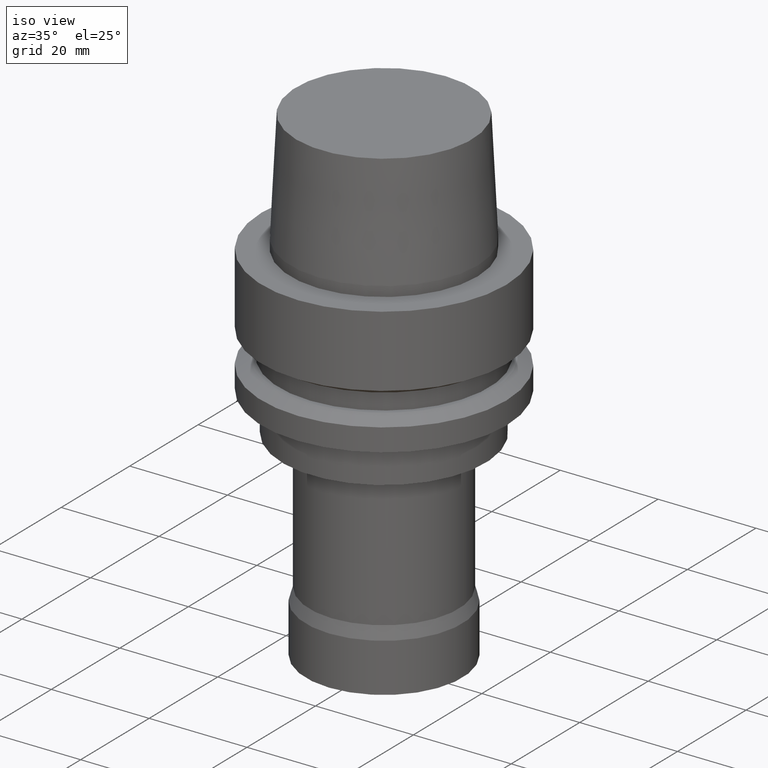
[diagram: clean part render]
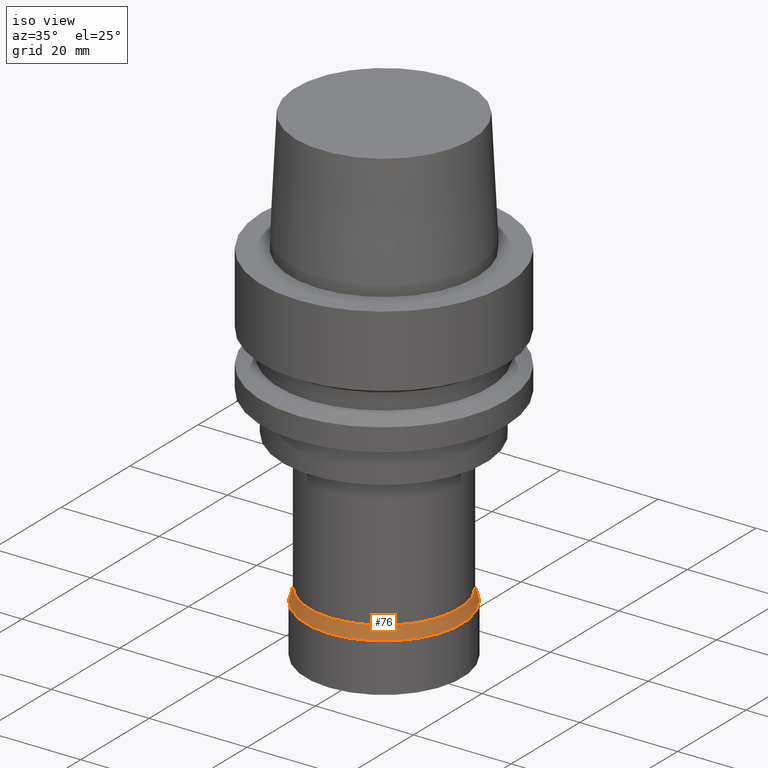
[diagram: same view with one face highlighted and labeled with its STEP entity id]
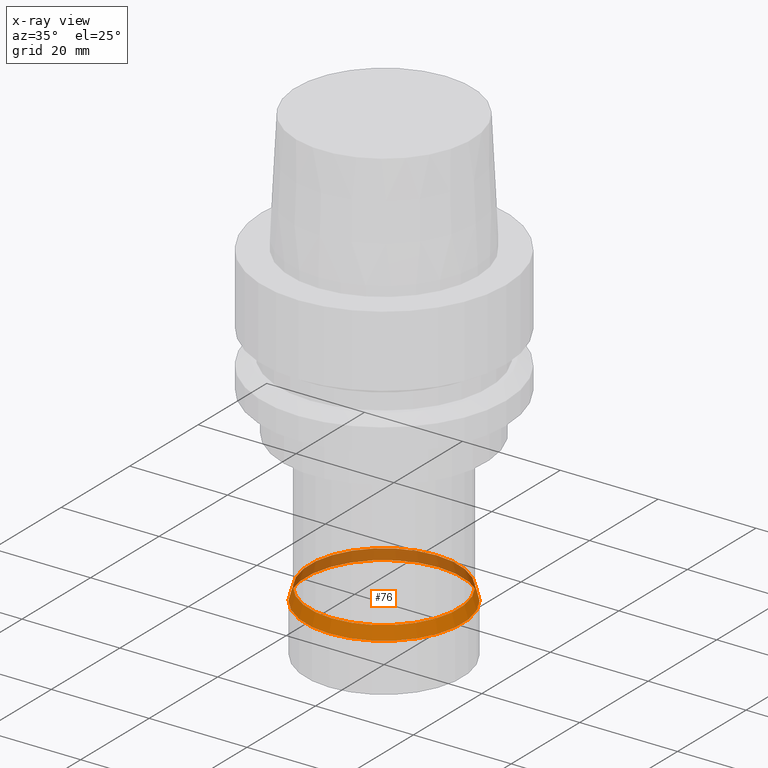
[diagram: x-ray of the same camera — body ghosted, the highlighted face saturated]
A machine part, iso view. The second image highlights one B-rep face of the part: STEP entity #76.
The next image is the same camera in x-ray: the body ghosted, the highlighted face saturated — about 38% of this face is hidden behind the body in this view.
In plain terms, the highlighted conical surface has half-angle 16.494 deg.
Its self-contained STEP definition (entity closure, byte-faithful):
#76=ADVANCED_FACE('',(#98,#99),#100,.T.);
#98=FACE_BOUND('',#153,.T.);
#99=FACE_BOUND('',#154,.T.);
#100=CONICAL_SURFACE('',#155,15.625,0.287865885212124);
#153=EDGE_LOOP('',(#210));
#154=EDGE_LOOP('',(#211));
#155=AXIS2_PLACEMENT_3D('',#212,#213,#214);
#210=ORIENTED_EDGE('',*,*,#300,.F.);
#211=ORIENTED_EDGE('',*,*,#298,.T.);
#212=CARTESIAN_POINT('',(3.90255094923521E-015,7.80510189847042E-015,-63.73349364));
#213=DIRECTION('',(6.12323399573677E-017,1.22464679914735E-016,-1.0));
#214=DIRECTION('',(-1.23259516440783E-032,1.0,1.22464679914735E-016));
#298=EDGE_CURVE('',#316,#316,#317,.T.);
#300=EDGE_CURVE('',#320,#320,#321,.T.);
#316=VERTEX_POINT('',#352);
#317=CIRCLE('',#353,15.25);
#320=VERTEX_POINT('',#356);
#321=CIRCLE('',#357,16.0);
#352=CARTESIAN_POINT('',(3.82499980124152E-015,15.25,-62.46698728));
#353=AXIS2_PLACEMENT_3D('',#388,#389,#390);
#356=CARTESIAN_POINT('',(3.9801020972289E-015,16.0,-65.0));
#357=AXIS2_PLACEMENT_3D('',#394,#395,#396);
#388=CARTESIAN_POINT('',(3.82499980124152E-015,7.64999960248304E-015,-62.46698728));
#389=DIRECTION('',(6.12323399573677E-017,1.22464679914735E-016,-1.0));
#390=DIRECTION('',(-1.23259516440783E-032,1.0,1.22464679914735E-016));
#394=CARTESIAN_POINT('',(3.9801020972289E-015,7.96020419445779E-015,-65.0));
#395=DIRECTION('',(6.12323399573677E-017,1.22464679914735E-016,-1.0));
#396=DIRECTION('',(-1.23259516440783E-032,1.0,1.22464679914735E-016));